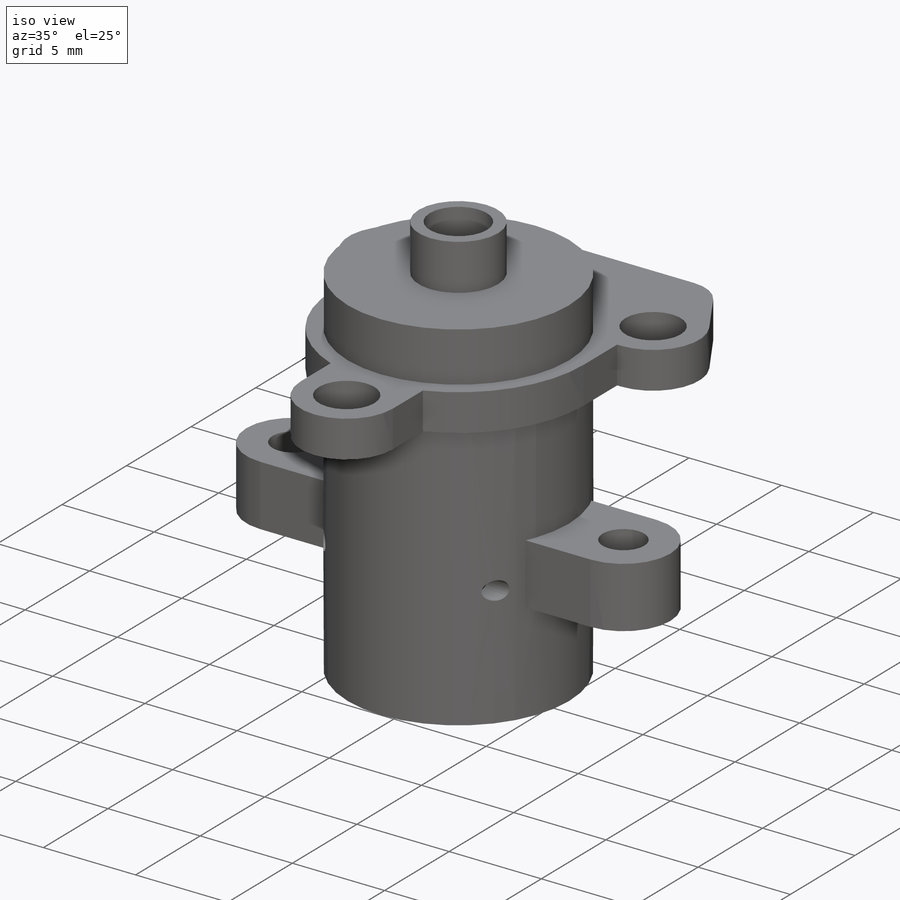
[diagram: iso view]
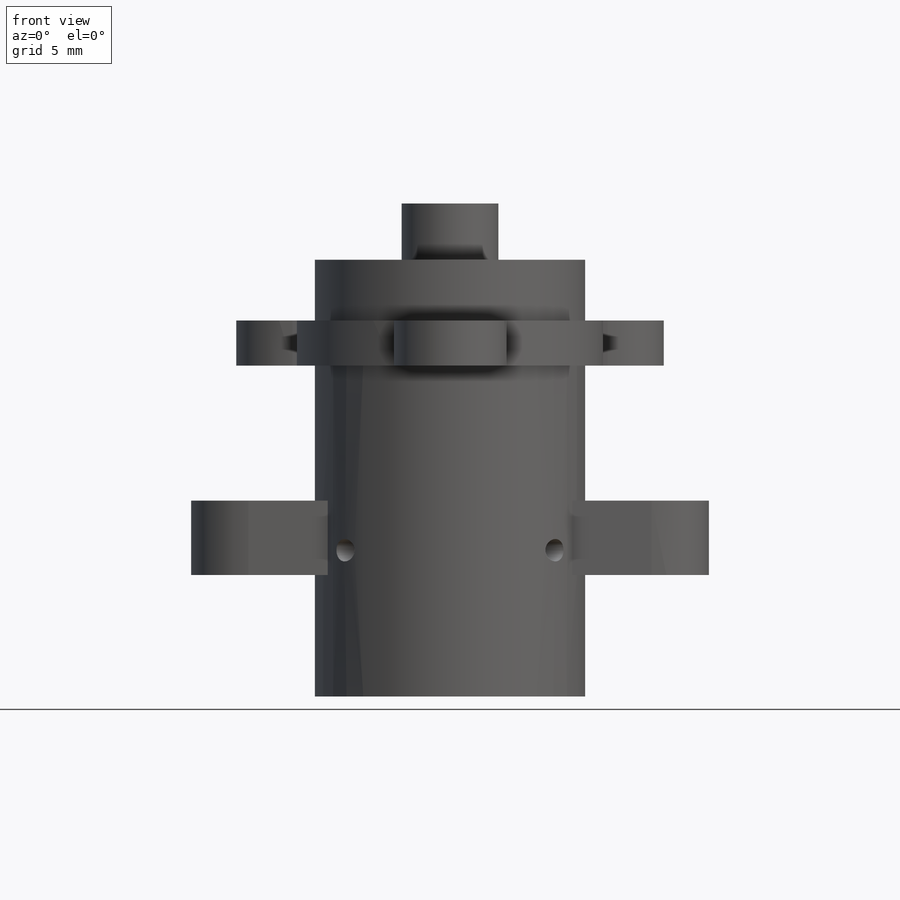
[diagram: front view]
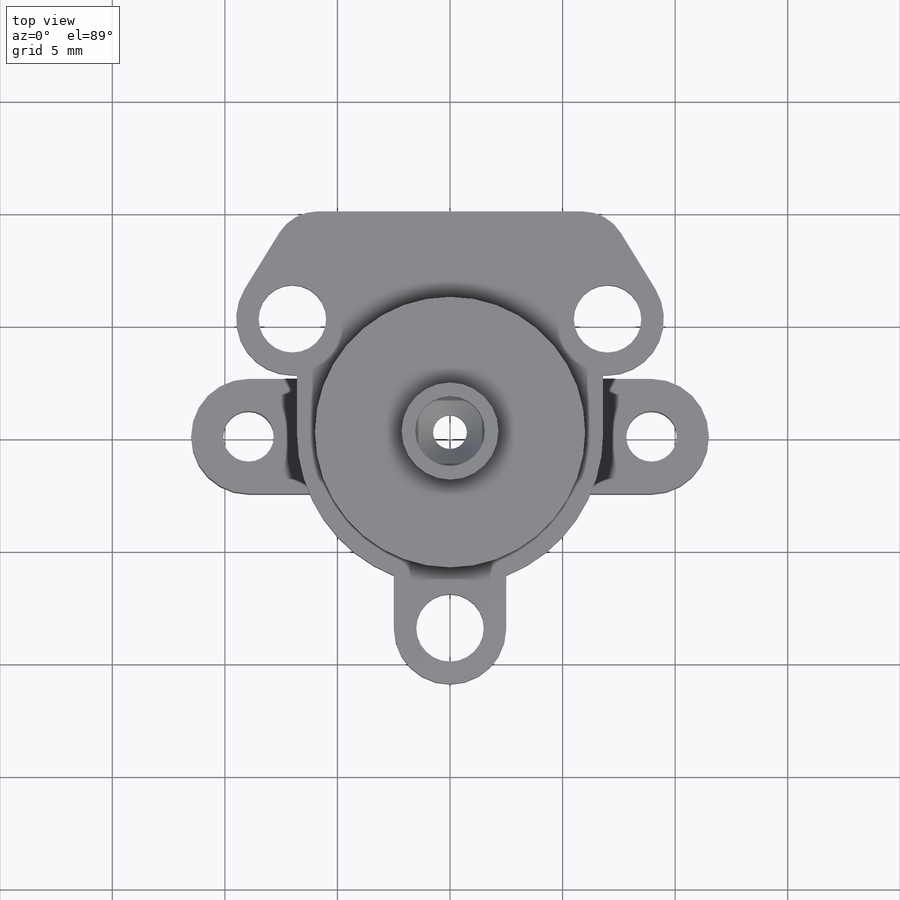
[diagram: top view]
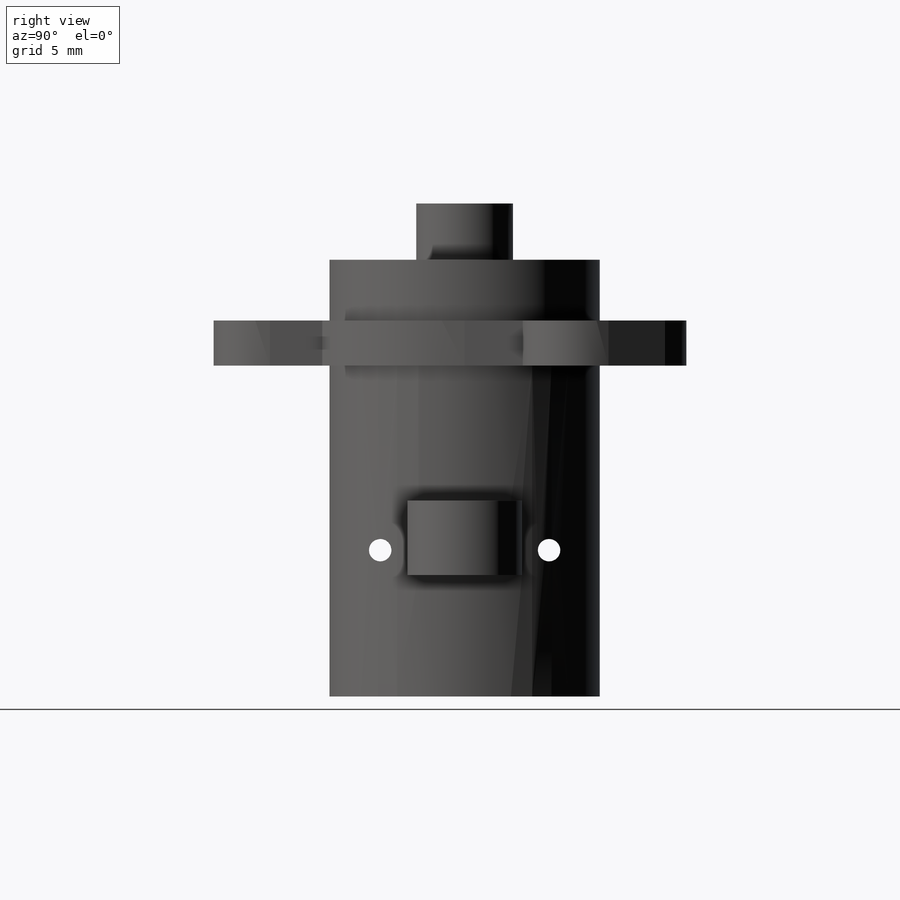
[diagram: right view]
SOLIDWORKS PART (.sldprt)
format: sldprt  version: not decoded by parser v0  size: 310,784 bytes
history: native  units: mm
features: sketch x8, extrude x3, cut_extrude x3, revolve x2, plane x2, material x1, fillet x1 (+15 scaffold rows collapsed)
feature tree (35):
  scaffold x15  (default folders/planes/origin — collapsed)
  material  "ABS PC"
  sketch  "Sketch1"  dims[D1=10.0mm D2=12.0mm D3=19.4mm D4=18.2mm D5=1.2mm D6=1.0mm]
  revolve  "Revolve1"  Angle=360deg
  sketch  "Sketch2"  dims[D1=4.3mm]
  extrude  "Extrude1"  Depth=2.5mm
  sketch  "Sketch3"  dims[D1=3.1mm D2=0.6mm]
  cut_extrude  "Cut-Extrude1"  [1 undecoded]
  sketch  "Sketch4"  dims[D1=1.5mm]
  cut_extrude  "Cut-Extrude2"  [1 undecoded]
  plane  "Plane1"  Offset=2.7mm
  sketch  "Sketch6"  dims[c1.D1=13.6mm c1.D2=~17.191769mm c1.D3=3.0mm c1.D4=17.3mm c1.D5=2.5mm c2.D2=5.0mm c2.D5=7.0mm c2.D6=14.0mm c3.D5=7.0mm c4.D5=~35.977422deg c5.D5=21.0mm c5.D7=14.0mm c5.D8=~4.296561mm c6.D8=60.0deg c6.D7=14.0mm]
  extrude  "Extrude2"  Depth=2mm
  fillet  "Fillet1"  Radius=2mm
  plane  "Plane2"  Offset=14mm
  sketch  "Sketch7"  dims[c1.D2=~1.62535mm c1.D3=2.25mm c1.D1=5.1mm c2.D2=23.0mm]
  extrude  "Extrude3"  Depth=3.3mm
  sketch  "Sketch8"  dims[c1.D1=~1.042008mm c2.D1=45.0deg]
  revolve  "Revolve2"  Angle=360deg
  sketch  "Sketch9"  dims[c1.D2=~1.660953mm c1.D3=1.0mm c1.D1=6.0mm c2.D2=6.5mm c2.D1=6.0mm]
  cut_extrude  "Cut-Extrude3"  [1 undecoded]
decode coverage: 14 of 17 modeling features carry decoded parameters
note: ~ marks probable driven/reference dimensions
note: 3 parameter values undecoded
summary: no parameter record found for 3 features
note: suppression state not decoded; provenance and decode notes live in map.json
